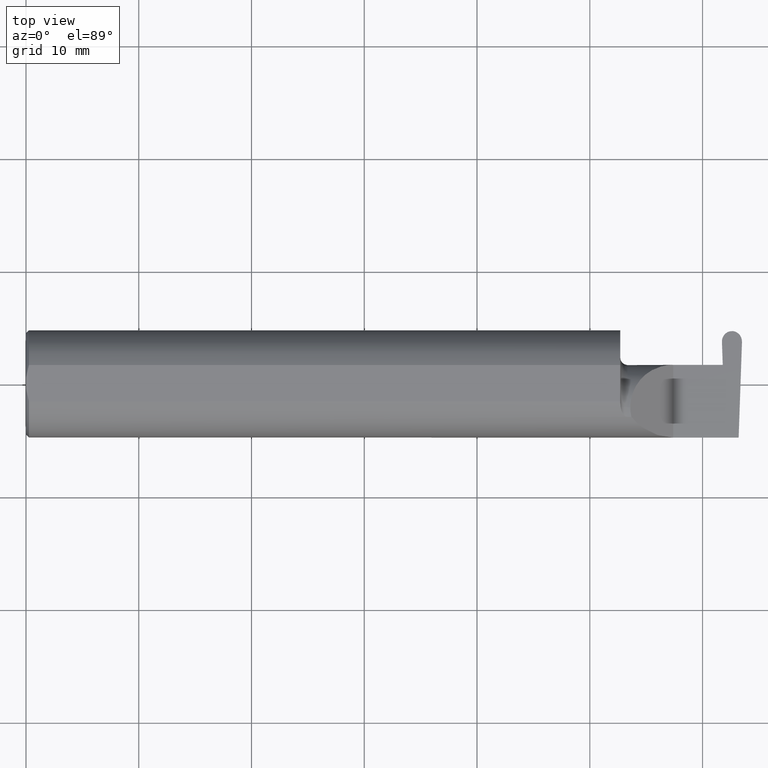
[diagram: clean part render]
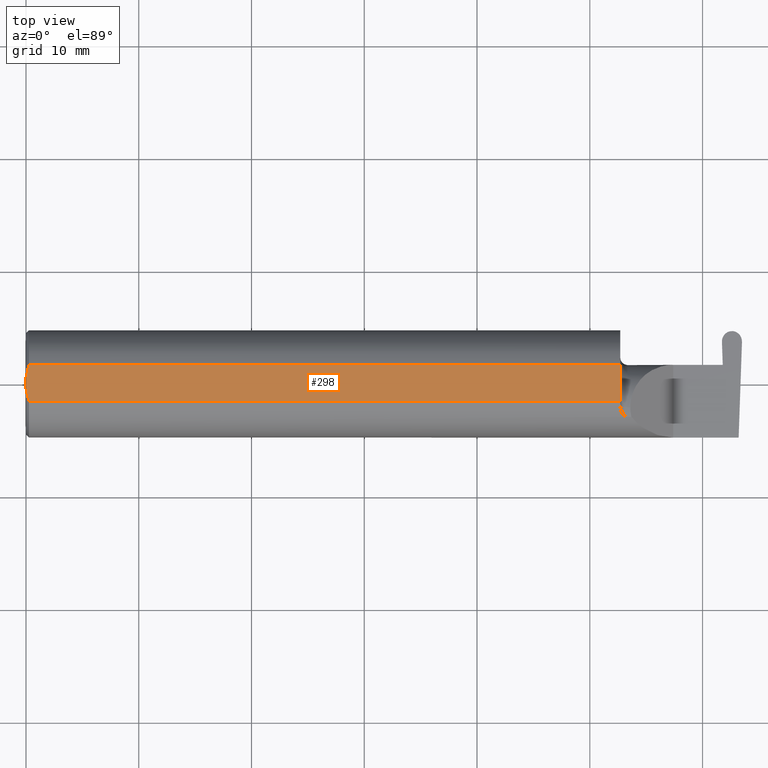
[diagram: same view with one face highlighted and labeled with its STEP entity id]
A machine part, top view. The second image highlights one B-rep face of the part: STEP entity #298.
In plain terms, the highlighted planar face has unit normal (0, 0, 1).
Its self-contained STEP definition (entity closure, byte-faithful):
#16 = VECTOR ( 'NONE', #774, 39.37007874015748143 ) ;
#21 = EDGE_LOOP ( 'NONE', ( #127, #92, #225, #524, #801, #598 ) ) ;
#24 = VERTEX_POINT ( 'NONE', #648 ) ;
#29 = CARTESIAN_POINT ( 'NONE',  ( 0.005151108632379595466, -0.04888864921576189376, 0.1763499999999999235 ) ) ;
#61 = LINE ( 'NONE', #305, #108 ) ;
#92 = ORIENTED_EDGE ( 'NONE', *, *, #688, .T. ) ;
#99 = EDGE_CURVE ( 'NONE', #806, #595, #777, .T. ) ;
#106 = CARTESIAN_POINT ( 'NONE',  ( 0.009999999999999346217, 0.06325108694718235836, 0.1763499999999999235 ) ) ;
#108 = VECTOR ( 'NONE', #436, 39.37007874015748143 ) ;
#127 = ORIENTED_EDGE ( 'NONE', *, *, #781, .T. ) ;
#154 = DIRECTION ( 'NONE',  ( -0.000000000000000000, 1.000000000000000000, -0.000000000000000000 ) ) ;
#159 = CARTESIAN_POINT ( 'NONE',  ( 2.075000000000000178, 0.1873499999999998500, 0.1763499999999999235 ) ) ;
#221 = VERTEX_POINT ( 'NONE', #534 ) ;
#225 = ORIENTED_EDGE ( 'NONE', *, *, #446, .T. ) ;
#233 = CARTESIAN_POINT ( 'NONE',  ( 0.000000000000000000, 0.01880691362239451242, 0.1763499999999999235 ) ) ;
#246 = CARTESIAN_POINT ( 'NONE',  ( 2.876828993045917215, 0.1873499999999998500, 0.1763499999999999235 ) ) ;
#248 = FACE_OUTER_BOUND ( 'NONE', #21, .T. ) ;
#251 = DIRECTION ( 'NONE',  ( 0.000000000000000000, 0.000000000000000000, 1.000000000000000000 ) ) ;
#253 = VERTEX_POINT ( 'NONE', #538 ) ;
#289 = CARTESIAN_POINT ( 'NONE',  ( 0.000000000000000000, -0.01880691362239451242, 0.1763499999999999235 ) ) ;
#298 = ADVANCED_FACE ( 'NONE', ( #248 ), #812, .T. ) ;
#305 = CARTESIAN_POINT ( 'NONE',  ( 0.000000000000000000, -0.06325108694718235836, 0.1763499999999999235 ) ) ;
#338 = CARTESIAN_POINT ( 'NONE',  ( 0.000000000000000000, -0.01880691362239451242, 0.1763499999999999235 ) ) ;
#357 = AXIS2_PLACEMENT_3D ( 'NONE', #246, #251, #619 ) ;
#407 = DIRECTION ( 'NONE',  ( 0.000000000000000000, 1.000000000000000000, 0.000000000000000000 ) ) ;
#418 = CARTESIAN_POINT ( 'NONE',  ( 0.000000000000000000, 0.1873499999999998500, 0.1763499999999999235 ) ) ;
#436 = DIRECTION ( 'NONE',  ( 1.000000000000000000, 0.000000000000000000, 0.000000000000000000 ) ) ;
#443 = VECTOR ( 'NONE', #154, 39.37007874015748143 ) ;
#446 = EDGE_CURVE ( 'NONE', #253, #24, #767, .T. ) ;
#469 = LINE ( 'NONE', #159, #775 ) ;
#516 = CARTESIAN_POINT ( 'NONE',  ( 0.000000000000000000, 0.06325108694718235836, 0.1763499999999999235 ) ) ;
#524 = ORIENTED_EDGE ( 'NONE', *, *, #665, .F. ) ;
#534 = CARTESIAN_POINT ( 'NONE',  ( 2.075000000000000178, -0.06325108694718283020, 0.1763499999999999235 ) ) ;
#538 = CARTESIAN_POINT ( 'NONE',  ( 2.075000000000000178, 0.06325108694718235836, 0.1763499999999999235 ) ) ;
#558 = CARTESIAN_POINT ( 'NONE',  ( 0.009999999999999346217, -0.06325108694718235836, 0.1763499999999999235 ) ) ;
#561 = VERTEX_POINT ( 'NONE', #587 ) ;
#583 = CARTESIAN_POINT ( 'NONE',  ( 0.001595548104417217512, -0.03385300050298979679, 0.1763499999999999235 ) ) ;
#587 = CARTESIAN_POINT ( 'NONE',  ( 0.000000000000000000, 0.01880691362239451242, 0.1763499999999999235 ) ) ;
#588 = EDGE_CURVE ( 'NONE', #595, #561, #725, .T. ) ;
#595 = VERTEX_POINT ( 'NONE', #289 ) ;
#598 = ORIENTED_EDGE ( 'NONE', *, *, #99, .F. ) ;
#619 = DIRECTION ( 'NONE',  ( 1.000000000000000000, 0.000000000000000000, -0.000000000000000000 ) ) ;
#639 = B_SPLINE_CURVE_WITH_KNOTS ( 'NONE', 3,
 ( #233, #785, #720, #106 ),
 .UNSPECIFIED., .F., .F.,
 ( 4, 4 ),
 ( 0.01188664626022267051, 0.01304646959483758001 ),
 .UNSPECIFIED. ) ;
#640 = CARTESIAN_POINT ( 'NONE',  ( 0.009999999999999346217, -0.06325108694718235836, 0.1763499999999999235 ) ) ;
#648 = CARTESIAN_POINT ( 'NONE',  ( 0.009999999999999346217, 0.06325108694718235836, 0.1763499999999999235 ) ) ;
#665 = EDGE_CURVE ( 'NONE', #561, #24, #639, .T. ) ;
#688 = EDGE_CURVE ( 'NONE', #221, #253, #469, .T. ) ;
#720 = CARTESIAN_POINT ( 'NONE',  ( 0.005155213631852355663, 0.04890080824240217866, 0.1763499999999999235 ) ) ;
#725 = LINE ( 'NONE', #418, #443 ) ;
#767 = LINE ( 'NONE', #516, #16 ) ;
#774 = DIRECTION ( 'NONE',  ( -1.000000000000000000, -0.000000000000000000, -0.000000000000000000 ) ) ;
#775 = VECTOR ( 'NONE', #407, 39.37007874015748143 ) ;
#777 = B_SPLINE_CURVE_WITH_KNOTS ( 'NONE', 3,
 ( #640, #29, #583, #338 ),
 .UNSPECIFIED., .F., .F.,
 ( 4, 4 ),
 ( 0.009771445421851449736, 0.01092787937989102981 ),
 .UNSPECIFIED. ) ;
#781 = EDGE_CURVE ( 'NONE', #806, #221, #61, .T. ) ;
#785 = CARTESIAN_POINT ( 'NONE',  ( 0.001616639753276218755, 0.03405189565400963680, 0.1763499999999999235 ) ) ;
#801 = ORIENTED_EDGE ( 'NONE', *, *, #588, .F. ) ;
#806 = VERTEX_POINT ( 'NONE', #558 ) ;
#812 = PLANE ( 'NONE',  #357 ) ;